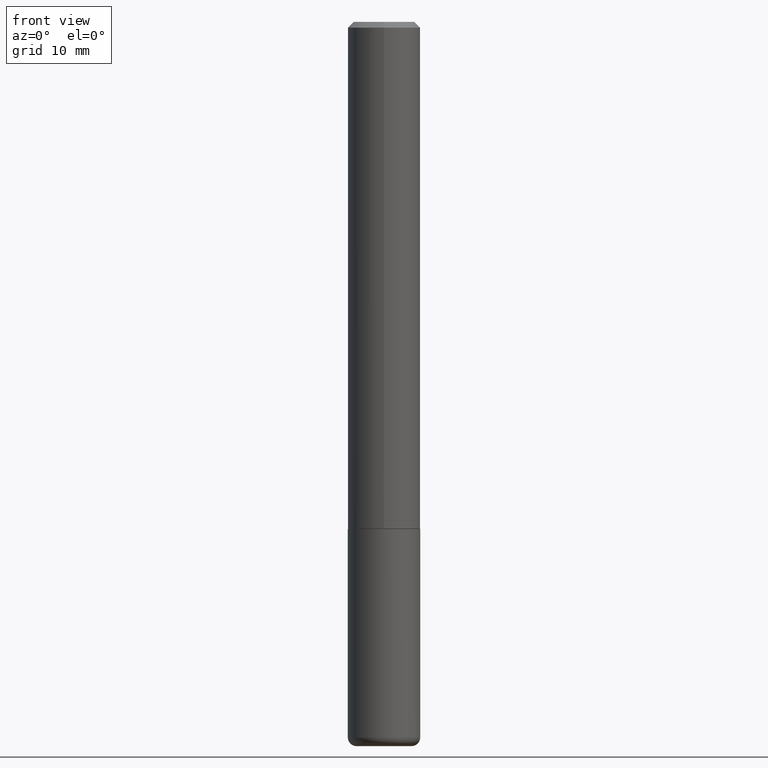
[diagram: clean part render]
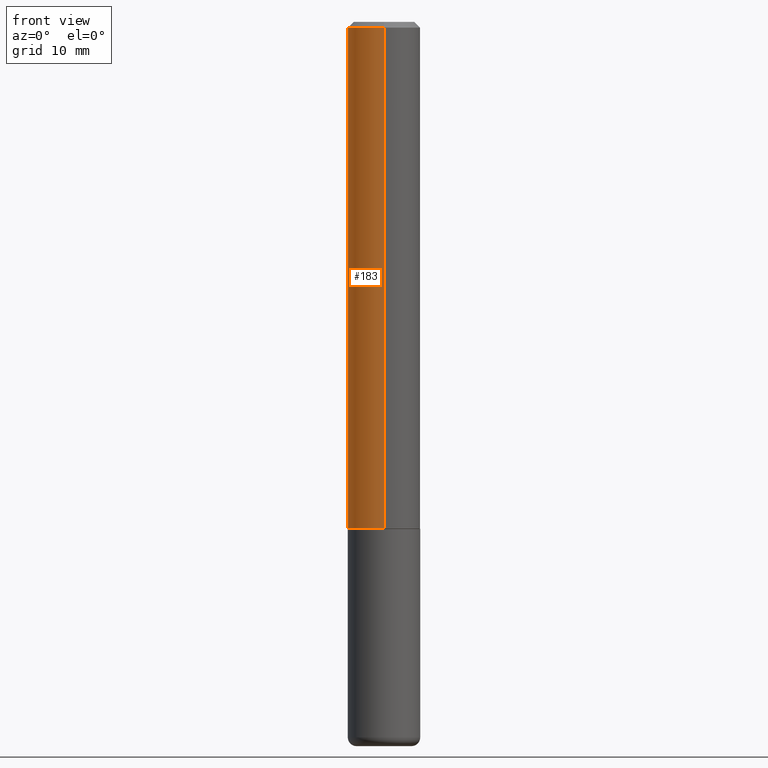
[diagram: same view with one face highlighted and labeled with its STEP entity id]
A machine part, front view. The second image highlights one B-rep face of the part: STEP entity #183.
In plain terms, the highlighted cylindrical surface (edge-blend (fillet) strip) has radius 3.175 mm, axis along (-0, 0, 1).
Its self-contained STEP definition (entity closure, byte-faithful):
#20 = VERTEX_POINT ( 'NONE', #184 ) ;
#21 = CIRCLE ( 'NONE', #188, 0.1250000000000002498 ) ;
#30 = EDGE_LOOP ( 'NONE', ( #218, #110, #345, #233 ) ) ;
#46 = CARTESIAN_POINT ( 'NONE',  ( 0.000000000000000000, 0.000000000000000000, 0.000000000000000000 ) ) ;
#66 = DIRECTION ( 'NONE',  ( -6.982962677686266711E-15, -1.000000000000000000, 3.490276172475858772E-15 ) ) ;
#74 = EDGE_CURVE ( 'NONE', #153, #176, #277, .T. ) ;
#80 = DIRECTION ( 'NONE',  ( -2.446310369361453361E-29, 3.490276172475858378E-15, 1.000000000000000000 ) ) ;
#86 = AXIS2_PLACEMENT_3D ( 'NONE', #326, #150, #285 ) ;
#87 = LINE ( 'NONE', #283, #225 ) ;
#110 = ORIENTED_EDGE ( 'NONE', *, *, #317, .T. ) ;
#137 = DIRECTION ( 'NONE',  ( -2.446310369361453361E-29, 3.490276172475858378E-15, 1.000000000000000000 ) ) ;
#150 = DIRECTION ( 'NONE',  ( -2.446310369361453361E-29, 3.490276172475858772E-15, 1.000000000000000000 ) ) ;
#153 = VERTEX_POINT ( 'NONE', #362 ) ;
#176 = VERTEX_POINT ( 'NONE', #202 ) ;
#177 = CARTESIAN_POINT ( 'NONE',  ( 4.278596836013182697E-29, -6.104493025660276744E-15, -1.749000000000000110 ) ) ;
#183 = ADVANCED_FACE ( 'NONE', ( #262 ), #201, .T. ) ;
#184 = CARTESIAN_POINT ( 'NONE',  ( 8.881784197001479121E-16, 0.1249999999999941019, -1.749000000000000554 ) ) ;
#188 = AXIS2_PLACEMENT_3D ( 'NONE', #177, #400, #372 ) ;
#191 = CARTESIAN_POINT ( 'NONE',  ( -8.728703347107421208E-16, -0.1250000000000063560, -1.748999999999999666 ) ) ;
#196 = EDGE_CURVE ( 'NONE', #20, #153, #394, .T. ) ;
#201 = CYLINDRICAL_SURFACE ( 'NONE', #298, 0.1250000000000001110 ) ;
#202 = CARTESIAN_POINT ( 'NONE',  ( -8.575622497214408537E-16, -0.1250000000000000555, -0.01999999999999959102 ) ) ;
#218 = ORIENTED_EDGE ( 'NONE', *, *, #196, .F. ) ;
#225 = VECTOR ( 'NONE', #80, 39.37007874015748143 ) ;
#233 = ORIENTED_EDGE ( 'NONE', *, *, #74, .F. ) ;
#262 = FACE_OUTER_BOUND ( 'NONE', #30, .T. ) ;
#277 = CIRCLE ( 'NONE', #86, 0.1250000000000000000 ) ;
#283 = CARTESIAN_POINT ( 'NONE',  ( -8.728703347107841277E-16, -0.1250000000000001110, 4.362845215594827410E-16 ) ) ;
#285 = DIRECTION ( 'NONE',  ( -6.982962677686265922E-15, -1.000000000000000000, 3.483106191921935554E-15 ) ) ;
#298 = AXIS2_PLACEMENT_3D ( 'NONE', #46, #301, #66 ) ;
#301 = DIRECTION ( 'NONE',  ( -2.446310369361453361E-29, 3.490276172475858772E-15, 1.000000000000000000 ) ) ;
#317 = EDGE_CURVE ( 'NONE', #20, #398, #21, .T. ) ;
#326 = CARTESIAN_POINT ( 'NONE',  ( 4.892620738722911906E-31, -6.980552344951725975E-17, -0.02000000000000002470 ) ) ;
#343 = VECTOR ( 'NONE', #137, 39.37007874015748143 ) ;
#345 = ORIENTED_EDGE ( 'NONE', *, *, #370, .T. ) ;
#362 = CARTESIAN_POINT ( 'NONE',  ( 8.728703347107837333E-16, 0.1249999999999999306, -0.02000000000000046185 ) ) ;
#370 = EDGE_CURVE ( 'NONE', #398, #176, #87, .T. ) ;
#372 = DIRECTION ( 'NONE',  ( -6.982962677686265133E-15, -1.000000000000000000, 4.370956789862812472E-15 ) ) ;
#393 = CARTESIAN_POINT ( 'NONE',  ( 8.881784197001260212E-16, 0.1250000000000001110, -4.362845215594827410E-16 ) ) ;
#394 = LINE ( 'NONE', #393, #343 ) ;
#398 = VERTEX_POINT ( 'NONE', #191 ) ;
#400 = DIRECTION ( 'NONE',  ( -2.446310369361453361E-29, 3.490276172475858772E-15, 1.000000000000000000 ) ) ;